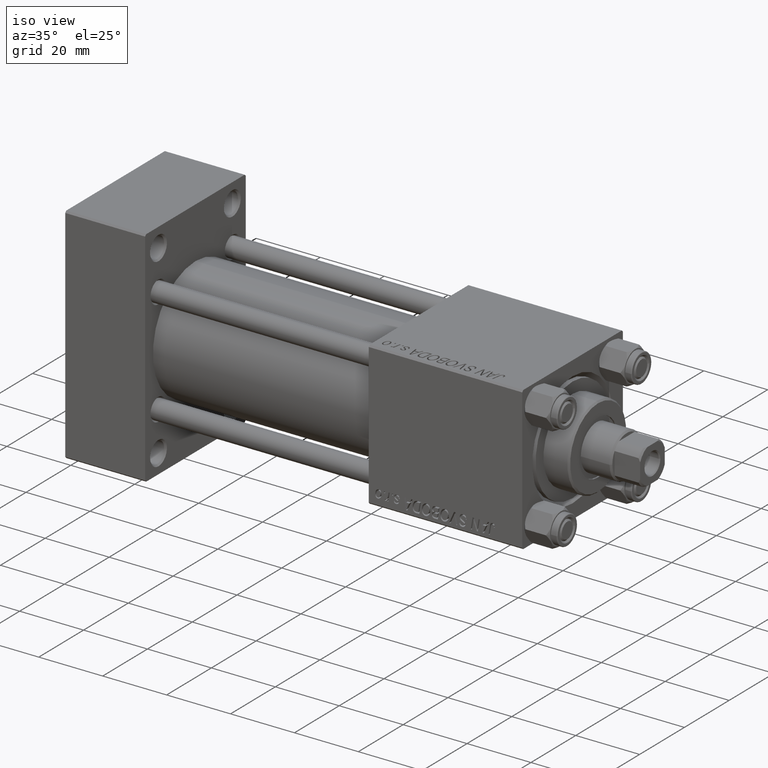
[diagram: clean part render]
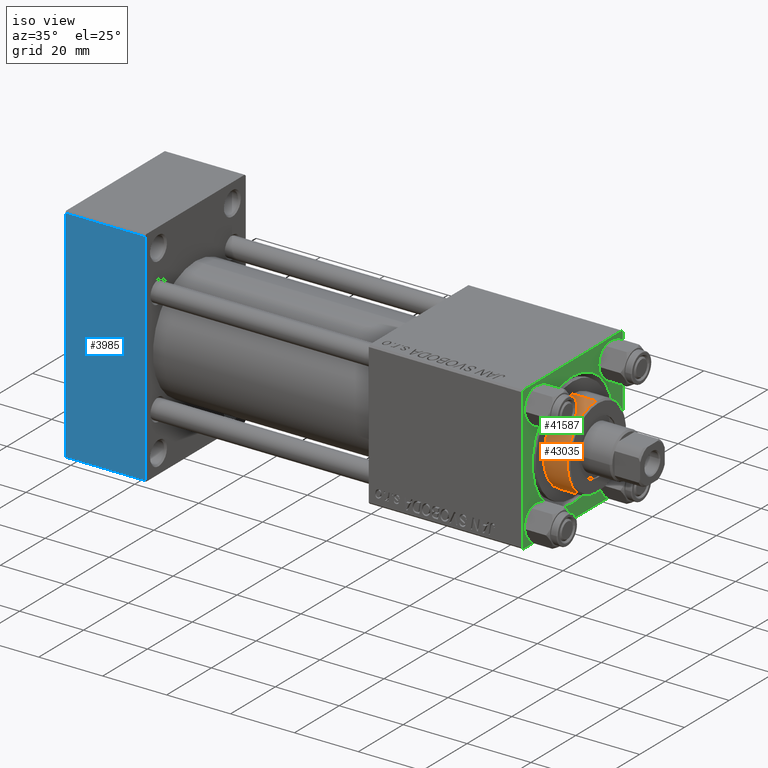
[diagram: same view with three faces highlighted in distinct colors, each labeled with its STEP entity id]
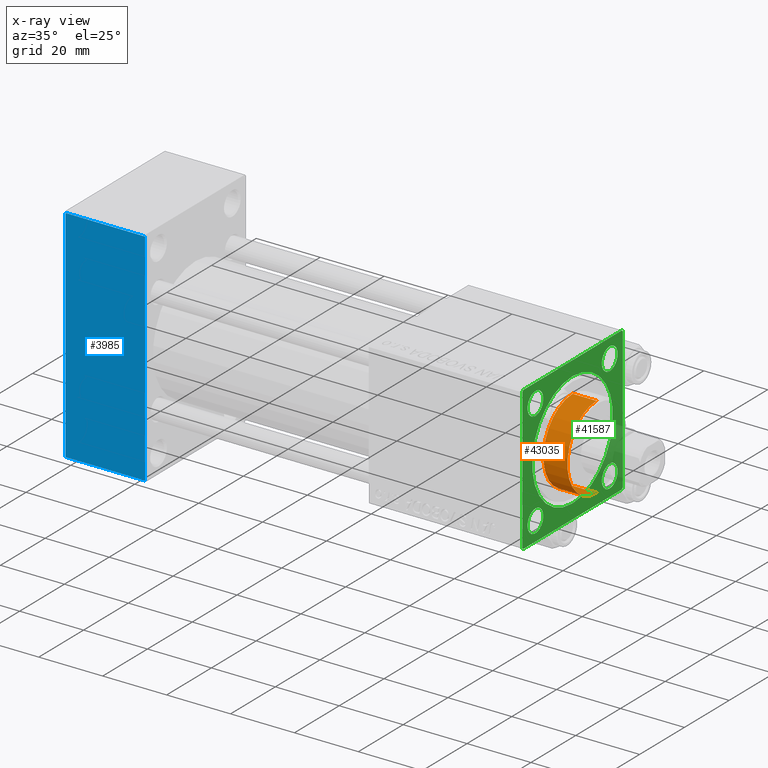
[diagram: x-ray of the same camera — body ghosted, the three highlighted faces saturated]
A machine part, iso view with three faces highlighted in distinct colors.
The next image is the same camera in x-ray (body ghosted, the three faces saturated) — at least one of them is partly hidden behind the body in this view.
Their STEP definitions:

[orange] entity #43035 — the highlighted cylindrical surface (partial cylindrical patch) has radius 13 mm, axis along (-1, -0, 0).
#1221 = VERTEX_POINT ( 'NONE', #47449 ) ;
#1530 = VECTOR ( 'NONE', #5713, 1000.000000000000000 ) ;
#2518 = DIRECTION ( 'NONE',  ( 0.000000000000000000, 0.000000000000000000, 1.000000000000000000 ) ) ;
#2690 = EDGE_CURVE ( 'NONE', #1221, #45446, #23543, .T. ) ;
#2933 = CIRCLE ( 'NONE', #31181, 13.00000000000000178 ) ;
#5415 = DIRECTION ( 'NONE',  ( -1.000000000000000000, 0.000000000000000000, 0.000000000000000000 ) ) ;
#5560 = DIRECTION ( 'NONE',  ( 1.000000000000000000, 0.000000000000000000, 0.000000000000000000 ) ) ;
#5713 = DIRECTION ( 'NONE',  ( -0.000000000000000000, -0.000000000000000000, -1.000000000000000000 ) ) ;
#7052 = VECTOR ( 'NONE', #31487, 1000.000000000000000 ) ;
#7485 = EDGE_CURVE ( 'NONE', #21145, #45446, #20373, .T. ) ;
#8235 = LINE ( 'NONE', #31237, #7052 ) ;
#9876 = CARTESIAN_POINT ( 'NONE',  ( -13.00000000000000178, 0.000000000000000000, 36.20000000000000995 ) ) ;
#10830 = CARTESIAN_POINT ( 'NONE',  ( 13.00000000000000178, 1.592040838891559293E-15, 28.69999999999999929 ) ) ;
#11867 = EDGE_LOOP ( 'NONE', ( #19000, #38710, #41828, #26089 ) ) ;
#13489 = CARTESIAN_POINT ( 'NONE',  ( 0.000000000000000000, 0.000000000000000000, 36.69999999999999574 ) ) ;
#14652 = AXIS2_PLACEMENT_3D ( 'NONE', #24778, #2518, #5560 ) ;
#16942 = CARTESIAN_POINT ( 'NONE',  ( 0.000000000000000000, 0.000000000000000000, 36.20000000000000995 ) ) ;
#19000 = ORIENTED_EDGE ( 'NONE', *, *, #7485, .F. ) ;
#20373 = LINE ( 'NONE', #35803, #1530 ) ;
#21145 = VERTEX_POINT ( 'NONE', #36284 ) ;
#21333 = DIRECTION ( 'NONE',  ( -0.000000000000000000, -0.000000000000000000, -1.000000000000000000 ) ) ;
#23543 = CIRCLE ( 'NONE', #14652, 13.00000000000000178 ) ;
#24641 = VERTEX_POINT ( 'NONE', #9876 ) ;
#24778 = CARTESIAN_POINT ( 'NONE',  ( 0.000000000000000000, 0.000000000000000000, 28.69999999999999929 ) ) ;
#26089 = ORIENTED_EDGE ( 'NONE', *, *, #2690, .T. ) ;
#31181 = AXIS2_PLACEMENT_3D ( 'NONE', #16942, #32105, #40180 ) ;
#31237 = CARTESIAN_POINT ( 'NONE',  ( -13.00000000000000178, 0.000000000000000000, 36.69999999999999574 ) ) ;
#31487 = DIRECTION ( 'NONE',  ( -0.000000000000000000, -0.000000000000000000, -1.000000000000000000 ) ) ;
#32105 = DIRECTION ( 'NONE',  ( 0.000000000000000000, 0.000000000000000000, -1.000000000000000000 ) ) ;
#32315 = EDGE_CURVE ( 'NONE', #24641, #1221, #8235, .T. ) ;
#32963 = FACE_OUTER_BOUND ( 'NONE', #11867, .T. ) ;
#35803 = CARTESIAN_POINT ( 'NONE',  ( 13.00000000000000178, 1.592040838891559293E-15, 36.69999999999999574 ) ) ;
#36284 = CARTESIAN_POINT ( 'NONE',  ( 13.00000000000000178, 1.592040838891559293E-15, 36.20000000000000995 ) ) ;
#38710 = ORIENTED_EDGE ( 'NONE', *, *, #45944, .T. ) ;
#40180 = DIRECTION ( 'NONE',  ( 1.000000000000000000, 0.000000000000000000, 0.000000000000000000 ) ) ;
#40536 = CYLINDRICAL_SURFACE ( 'NONE', #49657, 13.00000000000000178 ) ;
#41828 = ORIENTED_EDGE ( 'NONE', *, *, #32315, .T. ) ;
#43035 = ADVANCED_FACE ( 'NONE', ( #32963 ), #40536, .T. ) ;
#45446 = VERTEX_POINT ( 'NONE', #10830 ) ;
#45944 = EDGE_CURVE ( 'NONE', #21145, #24641, #2933, .T. ) ;
#47449 = CARTESIAN_POINT ( 'NONE',  ( -13.00000000000000178, 0.000000000000000000, 28.69999999999999929 ) ) ;
#49657 = AXIS2_PLACEMENT_3D ( 'NONE', #13489, #21333, #5415 ) ;

[blue] entity #3985 — the highlighted planar face has unit normal (0, 1, 0).
#666 = VERTEX_POINT ( 'NONE', #11773 ) ;
#896 = DIRECTION ( 'NONE',  ( -0.000000000000000000, 1.000000000000000000, 0.000000000000000000 ) ) ;
#1865 = CARTESIAN_POINT ( 'NONE',  ( 0.000000000000000000, -22.49999999999999645, 34.50000000000000000 ) ) ;
#3097 = CARTESIAN_POINT ( 'NONE',  ( 0.000000000000000000, -22.49999999999999645, 35.00000000000000000 ) ) ;
#3985 = ADVANCED_FACE ( 'NONE', ( #31242 ), #20104, .F. ) ;
#4371 = CARTESIAN_POINT ( 'NONE',  ( 25.00000000000000000, -22.49999999999999645, -34.50000000000000000 ) ) ;
#4983 = VERTEX_POINT ( 'NONE', #33688 ) ;
#9058 = AXIS2_PLACEMENT_3D ( 'NONE', #35528, #896, #42347 ) ;
#9748 = EDGE_CURVE ( 'NONE', #4983, #666, #46041, .T. ) ;
#10639 = ORIENTED_EDGE ( 'NONE', *, *, #38284, .T. ) ;
#11773 = CARTESIAN_POINT ( 'NONE',  ( 25.00000000000000000, -22.49999999999999645, -34.50000000000000000 ) ) ;
#13972 = EDGE_LOOP ( 'NONE', ( #10639, #31909, #31161, #14676 ) ) ;
#14460 = CARTESIAN_POINT ( 'NONE',  ( 25.00000000000000000, -22.49999999999999645, 34.50000000000000000 ) ) ;
#14676 = ORIENTED_EDGE ( 'NONE', *, *, #31897, .T. ) ;
#14951 = DIRECTION ( 'NONE',  ( 0.000000000000000000, 0.000000000000000000, -1.000000000000000000 ) ) ;
#16246 = DIRECTION ( 'NONE',  ( 1.000000000000000000, 0.000000000000000000, 0.000000000000000000 ) ) ;
#20104 = PLANE ( 'NONE',  #9058 ) ;
#21788 = VECTOR ( 'NONE', #16246, 1000.000000000000000 ) ;
#24083 = VERTEX_POINT ( 'NONE', #28025 ) ;
#25721 = VERTEX_POINT ( 'NONE', #1865 ) ;
#26928 = LINE ( 'NONE', #27676, #33426 ) ;
#27676 = CARTESIAN_POINT ( 'NONE',  ( 25.00000000000000000, -22.49999999999999645, 35.00000000000000000 ) ) ;
#28025 = CARTESIAN_POINT ( 'NONE',  ( 25.00000000000000000, -22.49999999999999645, 34.50000000000000000 ) ) ;
#29457 = VECTOR ( 'NONE', #14951, 1000.000000000000000 ) ;
#31161 = ORIENTED_EDGE ( 'NONE', *, *, #35907, .F. ) ;
#31242 = FACE_OUTER_BOUND ( 'NONE', #13972, .T. ) ;
#31897 = EDGE_CURVE ( 'NONE', #24083, #25721, #49064, .T. ) ;
#31909 = ORIENTED_EDGE ( 'NONE', *, *, #9748, .T. ) ;
#32882 = VECTOR ( 'NONE', #40755, 1000.000000000000000 ) ;
#33426 = VECTOR ( 'NONE', #35507, 1000.000000000000000 ) ;
#33688 = CARTESIAN_POINT ( 'NONE',  ( 0.000000000000000000, -22.49999999999999645, -34.50000000000000000 ) ) ;
#35507 = DIRECTION ( 'NONE',  ( 0.000000000000000000, 0.000000000000000000, -1.000000000000000000 ) ) ;
#35528 = CARTESIAN_POINT ( 'NONE',  ( 25.00000000000000000, -22.49999999999999645, 35.00000000000000000 ) ) ;
#35907 = EDGE_CURVE ( 'NONE', #24083, #666, #26928, .T. ) ;
#38284 = EDGE_CURVE ( 'NONE', #25721, #4983, #38457, .T. ) ;
#38457 = LINE ( 'NONE', #3097, #29457 ) ;
#40755 = DIRECTION ( 'NONE',  ( -1.000000000000000000, 0.000000000000000000, 0.000000000000000000 ) ) ;
#42347 = DIRECTION ( 'NONE',  ( 0.000000000000000000, -0.000000000000000000, 1.000000000000000000 ) ) ;
#46041 = LINE ( 'NONE', #4371, #21788 ) ;
#49064 = LINE ( 'NONE', #14460, #32882 ) ;

[green] entity #41587 — the highlighted planar face has unit normal (-1, 0, 0).
#47 = VERTEX_POINT ( 'NONE', #14328 ) ;
#416 = DIRECTION ( 'NONE',  ( -0.000000000000000000, 0.000000000000000000, 1.000000000000000000 ) ) ;
#752 = ORIENTED_EDGE ( 'NONE', *, *, #10450, .T. ) ;
#1646 = EDGE_CURVE ( 'NONE', #12073, #47273, #24420, .T. ) ;
#1754 = DIRECTION ( 'NONE',  ( 0.000000000000000000, 0.000000000000000000, 1.000000000000000000 ) ) ;
#1976 = ORIENTED_EDGE ( 'NONE', *, *, #37274, .F. ) ;
#2399 = VERTEX_POINT ( 'NONE', #8424 ) ;
#2968 = AXIS2_PLACEMENT_3D ( 'NONE', #21456, #44678, #13857 ) ;
#3361 = VERTEX_POINT ( 'NONE', #36274 ) ;
#3461 = ORIENTED_EDGE ( 'NONE', *, *, #12328, .T. ) ;
#3666 = DIRECTION ( 'NONE',  ( 0.000000000000000000, -1.000000000000000000, -7.709882115452476934E-17 ) ) ;
#3986 = CARTESIAN_POINT ( 'NONE',  ( 143.0000000000000284, 0.000000000000000000, 0.000000000000000000 ) ) ;
#4012 = CIRCLE ( 'NONE', #35481, 3.499999999999989342 ) ;
#4461 = DIRECTION ( 'NONE',  ( 0.000000000000000000, 0.7071067811865328068, -0.7071067811865622277 ) ) ;
#5083 = ORIENTED_EDGE ( 'NONE', *, *, #11018, .T. ) ;
#5205 = CARTESIAN_POINT ( 'NONE',  ( 143.0000000000000284, -22.00000000000001066, -22.50000000000000000 ) ) ;
#5668 = EDGE_CURVE ( 'NONE', #45420, #12073, #45520, .T. ) ;
#5809 = EDGE_LOOP ( 'NONE', ( #41177, #5083 ) ) ;
#5887 = DIRECTION ( 'NONE',  ( 0.000000000000000000, 0.000000000000000000, -1.000000000000000000 ) ) ;
#5901 = CARTESIAN_POINT ( 'NONE',  ( 143.0000000000000284, 2.204364238465237794E-15, 18.00000000000001421 ) ) ;
#6643 = DIRECTION ( 'NONE',  ( -1.000000000000000000, 0.000000000000000000, -0.000000000000000000 ) ) ;
#6940 = CARTESIAN_POINT ( 'NONE',  ( 143.0000000000000284, -22.49999999999999645, -21.99999999999997868 ) ) ;
#8424 = CARTESIAN_POINT ( 'NONE',  ( 143.0000000000000284, 16.59999999999999787, -20.09999999999995168 ) ) ;
#8516 = CARTESIAN_POINT ( 'NONE',  ( 143.0000000000000284, 0.000000000000000000, 0.000000000000000000 ) ) ;
#8599 = AXIS2_PLACEMENT_3D ( 'NONE', #12940, #28373, #46799 ) ;
#8673 = DIRECTION ( 'NONE',  ( 0.000000000000000000, 0.000000000000000000, 1.000000000000000000 ) ) ;
#8973 = ORIENTED_EDGE ( 'NONE', *, *, #46076, .F. ) ;
#9138 = AXIS2_PLACEMENT_3D ( 'NONE', #14225, #6643, #11910 ) ;
#9140 = CARTESIAN_POINT ( 'NONE',  ( 143.0000000000000284, -16.59999999999999076, -16.60000000000000853 ) ) ;
#9668 = CARTESIAN_POINT ( 'NONE',  ( 143.0000000000000284, 16.59999999999999787, -16.60000000000000497 ) ) ;
#9702 = CARTESIAN_POINT ( 'NONE',  ( 143.0000000000000284, 0.000000000000000000, -18.00000000000001421 ) ) ;
#9790 = VECTOR ( 'NONE', #4461, 1000.000000000000000 ) ;
#10450 = EDGE_CURVE ( 'NONE', #44655, #15614, #4012, .T. ) ;
#10592 = ORIENTED_EDGE ( 'NONE', *, *, #46484, .T. ) ;
#10738 = CARTESIAN_POINT ( 'NONE',  ( 143.0000000000000284, 21.99999999999998934, 22.50000000000000355 ) ) ;
#10801 = EDGE_LOOP ( 'NONE', ( #47726, #33864 ) ) ;
#11018 = EDGE_CURVE ( 'NONE', #47, #2399, #49245, .T. ) ;
#11421 = CARTESIAN_POINT ( 'NONE',  ( 143.0000000000000284, -16.59999999999999076, -20.09999999999999787 ) ) ;
#11752 = VECTOR ( 'NONE', #18815, 1000.000000000000114 ) ;
#11857 = VECTOR ( 'NONE', #39048, 1000.000000000000000 ) ;
#11910 = DIRECTION ( 'NONE',  ( 0.000000000000000000, 0.000000000000000000, 1.000000000000000000 ) ) ;
#12073 = VERTEX_POINT ( 'NONE', #6940 ) ;
#12082 = DIRECTION ( 'NONE',  ( -0.000000000000000000, -0.7071067811865474617, -0.7071067811865474617 ) ) ;
#12123 = ORIENTED_EDGE ( 'NONE', *, *, #12264, .T. ) ;
#12264 = EDGE_CURVE ( 'NONE', #23930, #45420, #27272, .T. ) ;
#12328 = EDGE_CURVE ( 'NONE', #45645, #47914, #27018, .T. ) ;
#12940 = CARTESIAN_POINT ( 'NONE',  ( 143.0000000000000284, 16.59999999999999787, -16.60000000000000497 ) ) ;
#13834 = EDGE_LOOP ( 'NONE', ( #22119, #752 ) ) ;
#13857 = DIRECTION ( 'NONE',  ( 0.000000000000000000, 0.000000000000000000, 1.000000000000000000 ) ) ;
#13961 = CIRCLE ( 'NONE', #9138, 3.499999999999989342 ) ;
#14225 = CARTESIAN_POINT ( 'NONE',  ( 143.0000000000000284, -16.59999999999999076, 16.60000000000000853 ) ) ;
#14328 = CARTESIAN_POINT ( 'NONE',  ( 143.0000000000000284, 16.59999999999999787, -13.10000000000005649 ) ) ;
#14388 = EDGE_CURVE ( 'NONE', #14700, #25641, #38078, .T. ) ;
#14700 = VERTEX_POINT ( 'NONE', #9702 ) ;
#15360 = DIRECTION ( 'NONE',  ( 0.000000000000000000, 0.000000000000000000, 1.000000000000000000 ) ) ;
#15364 = DIRECTION ( 'NONE',  ( 0.000000000000000000, 0.000000000000000000, 1.000000000000000000 ) ) ;
#15614 = VERTEX_POINT ( 'NONE', #11421 ) ;
#15685 = LINE ( 'NONE', #38932, #39118 ) ;
#16288 = AXIS2_PLACEMENT_3D ( 'NONE', #8516, #32009, #16845 ) ;
#16728 = DIRECTION ( 'NONE',  ( -1.000000000000000000, 0.000000000000000000, -0.000000000000000000 ) ) ;
#16845 = DIRECTION ( 'NONE',  ( 0.000000000000000000, 0.000000000000000000, 1.000000000000000000 ) ) ;
#18063 = ORIENTED_EDGE ( 'NONE', *, *, #28499, .T. ) ;
#18088 = AXIS2_PLACEMENT_3D ( 'NONE', #38613, #27259, #15364 ) ;
#18177 = CARTESIAN_POINT ( 'NONE',  ( 143.0000000000000284, -16.59999999999999076, -16.60000000000000853 ) ) ;
#18815 = DIRECTION ( 'NONE',  ( 0.000000000000000000, -0.7071067811865474617, 0.7071067811865474617 ) ) ;
#18833 = LINE ( 'NONE', #25695, #46515 ) ;
#19130 = FACE_BOUND ( 'NONE', #5809, .T. ) ;
#19376 = PLANE ( 'NONE',  #44076 ) ;
#19607 = EDGE_CURVE ( 'NONE', #25641, #14700, #36595, .T. ) ;
#20092 = CARTESIAN_POINT ( 'NONE',  ( 143.0000000000000284, 21.99999999999998934, -22.49999999999999645 ) ) ;
#20146 = VECTOR ( 'NONE', #5887, 1000.000000000000000 ) ;
#20772 = VERTEX_POINT ( 'NONE', #41358 ) ;
#21270 = AXIS2_PLACEMENT_3D ( 'NONE', #3986, #35070, #15360 ) ;
#21456 = CARTESIAN_POINT ( 'NONE',  ( 143.0000000000000284, 16.59999999999999787, 16.60000000000000497 ) ) ;
#22119 = ORIENTED_EDGE ( 'NONE', *, *, #40400, .T. ) ;
#22424 = EDGE_CURVE ( 'NONE', #3361, #20772, #13961, .T. ) ;
#22484 = CARTESIAN_POINT ( 'NONE',  ( 143.0000000000000284, 22.50000000000000355, -21.99999999999998224 ) ) ;
#23186 = FACE_OUTER_BOUND ( 'NONE', #28951, .T. ) ;
#23480 = CARTESIAN_POINT ( 'NONE',  ( 143.0000000000000284, -22.49999999999999645, 21.99999999999997868 ) ) ;
#23930 = VERTEX_POINT ( 'NONE', #38819 ) ;
#24420 = LINE ( 'NONE', #5205, #9790 ) ;
#24560 = DIRECTION ( 'NONE',  ( 0.000000000000000000, 0.000000000000000000, 1.000000000000000000 ) ) ;
#25070 = ORIENTED_EDGE ( 'NONE', *, *, #36653, .T. ) ;
#25096 = VECTOR ( 'NONE', #12082, 1000.000000000000114 ) ;
#25641 = VERTEX_POINT ( 'NONE', #5901 ) ;
#25695 = CARTESIAN_POINT ( 'NONE',  ( 143.0000000000000284, 22.50000000000000355, -22.49999999999999645 ) ) ;
#25861 = AXIS2_PLACEMENT_3D ( 'NONE', #9668, #28883, #8673 ) ;
#25995 = EDGE_LOOP ( 'NONE', ( #43428, #38171 ) ) ;
#26711 = DIRECTION ( 'NONE',  ( -1.000000000000000000, 0.000000000000000000, -0.000000000000000000 ) ) ;
#26957 = CIRCLE ( 'NONE', #18088, 3.499999999999989342 ) ;
#27018 = LINE ( 'NONE', #22484, #39585 ) ;
#27231 = FACE_BOUND ( 'NONE', #10801, .T. ) ;
#27259 = DIRECTION ( 'NONE',  ( -1.000000000000000000, 0.000000000000000000, -0.000000000000000000 ) ) ;
#27272 = LINE ( 'NONE', #23480, #25096 ) ;
#27712 = DIRECTION ( 'NONE',  ( 0.000000000000000000, 0.000000000000000000, 1.000000000000000000 ) ) ;
#27970 = CARTESIAN_POINT ( 'NONE',  ( 143.0000000000000284, 0.000000000000000000, 0.000000000000000000 ) ) ;
#28107 = CARTESIAN_POINT ( 'NONE',  ( 143.0000000000000284, 21.99999999999998934, 22.50000000000000355 ) ) ;
#28373 = DIRECTION ( 'NONE',  ( -1.000000000000000000, 0.000000000000000000, -0.000000000000000000 ) ) ;
#28499 = EDGE_CURVE ( 'NONE', #49488, #44129, #48886, .T. ) ;
#28883 = DIRECTION ( 'NONE',  ( -1.000000000000000000, 0.000000000000000000, -0.000000000000000000 ) ) ;
#28951 = EDGE_LOOP ( 'NONE', ( #42744, #33414, #8973, #3461, #1976, #18063, #39238, #12123 ) ) ;
#29308 = DIRECTION ( 'NONE',  ( -1.000000000000000000, 0.000000000000000000, -0.000000000000000000 ) ) ;
#29345 = CARTESIAN_POINT ( 'NONE',  ( 143.0000000000000284, 22.50000000000000355, 21.99999999999998934 ) ) ;
#30153 = EDGE_CURVE ( 'NONE', #2399, #47, #30388, .T. ) ;
#30388 = CIRCLE ( 'NONE', #8599, 3.499999999999947597 ) ;
#31513 = DIRECTION ( 'NONE',  ( -1.000000000000000000, 0.000000000000000000, -0.000000000000000000 ) ) ;
#32009 = DIRECTION ( 'NONE',  ( -1.000000000000000000, 0.000000000000000000, -0.000000000000000000 ) ) ;
#33414 = ORIENTED_EDGE ( 'NONE', *, *, #1646, .T. ) ;
#33589 = CARTESIAN_POINT ( 'NONE',  ( 143.0000000000000284, -16.59999999999999076, -13.10000000000001741 ) ) ;
#33864 = ORIENTED_EDGE ( 'NONE', *, *, #19607, .T. ) ;
#33974 = EDGE_LOOP ( 'NONE', ( #10592, #25070 ) ) ;
#35070 = DIRECTION ( 'NONE',  ( -1.000000000000000000, 0.000000000000000000, -0.000000000000000000 ) ) ;
#35481 = AXIS2_PLACEMENT_3D ( 'NONE', #18177, #29308, #1754 ) ;
#36274 = CARTESIAN_POINT ( 'NONE',  ( 143.0000000000000284, -16.59999999999999076, 13.10000000000001741 ) ) ;
#36595 = CIRCLE ( 'NONE', #21270, 18.00000000000001421 ) ;
#36653 = EDGE_CURVE ( 'NONE', #40410, #39544, #26957, .T. ) ;
#36812 = AXIS2_PLACEMENT_3D ( 'NONE', #9140, #16728, #24560 ) ;
#36928 = CARTESIAN_POINT ( 'NONE',  ( 143.0000000000000284, 16.59999999999999787, 20.09999999999999432 ) ) ;
#37274 = EDGE_CURVE ( 'NONE', #49488, #47914, #15685, .T. ) ;
#38078 = CIRCLE ( 'NONE', #16288, 18.00000000000001421 ) ;
#38138 = DIRECTION ( 'NONE',  ( -0.000000000000000000, 0.7071067811865474617, 0.7071067811865474617 ) ) ;
#38171 = ORIENTED_EDGE ( 'NONE', *, *, #40902, .T. ) ;
#38371 = CARTESIAN_POINT ( 'NONE',  ( 143.0000000000000284, -22.49999999999999645, 21.99999999999997868 ) ) ;
#38429 = AXIS2_PLACEMENT_3D ( 'NONE', #42356, #26711, #27712 ) ;
#38613 = CARTESIAN_POINT ( 'NONE',  ( 143.0000000000000284, 16.59999999999999787, 16.60000000000000497 ) ) ;
#38799 = CARTESIAN_POINT ( 'NONE',  ( 143.0000000000000284, 22.50000000000000355, -21.99999999999996803 ) ) ;
#38819 = CARTESIAN_POINT ( 'NONE',  ( 143.0000000000000284, -21.99999999999996803, 22.49999999999999289 ) ) ;
#38932 = CARTESIAN_POINT ( 'NONE',  ( 143.0000000000000284, 22.50000000000000355, 22.50000000000000355 ) ) ;
#39048 = DIRECTION ( 'NONE',  ( 0.000000000000000000, -1.000000000000000000, -2.312964634635742957E-16 ) ) ;
#39118 = VECTOR ( 'NONE', #49785, 1000.000000000000000 ) ;
#39238 = ORIENTED_EDGE ( 'NONE', *, *, #47093, .T. ) ;
#39337 = FACE_BOUND ( 'NONE', #33974, .T. ) ;
#39544 = VERTEX_POINT ( 'NONE', #44728 ) ;
#39585 = VECTOR ( 'NONE', #38138, 1000.000000000000114 ) ;
#40400 = EDGE_CURVE ( 'NONE', #15614, #44655, #49695, .T. ) ;
#40410 = VERTEX_POINT ( 'NONE', #36928 ) ;
#40843 = CIRCLE ( 'NONE', #38429, 3.499999999999989342 ) ;
#40872 = CIRCLE ( 'NONE', #2968, 3.499999999999989342 ) ;
#40902 = EDGE_CURVE ( 'NONE', #20772, #3361, #40843, .T. ) ;
#41177 = ORIENTED_EDGE ( 'NONE', *, *, #30153, .T. ) ;
#41358 = CARTESIAN_POINT ( 'NONE',  ( 143.0000000000000284, -16.59999999999999076, 20.09999999999999787 ) ) ;
#41587 = ADVANCED_FACE ( 'NONE', ( #42616, #19130, #39337, #43112, #27231, #23186 ), #19376, .F. ) ;
#41783 = CARTESIAN_POINT ( 'NONE',  ( 143.0000000000000284, -21.99999999999999645, -22.50000000000000000 ) ) ;
#42356 = CARTESIAN_POINT ( 'NONE',  ( 143.0000000000000284, -16.59999999999999076, 16.60000000000000853 ) ) ;
#42616 = FACE_BOUND ( 'NONE', #13834, .T. ) ;
#42744 = ORIENTED_EDGE ( 'NONE', *, *, #5668, .T. ) ;
#42825 = LINE ( 'NONE', #43073, #11857 ) ;
#43073 = CARTESIAN_POINT ( 'NONE',  ( 143.0000000000000284, 22.50000000000000355, 22.50000000000000355 ) ) ;
#43112 = FACE_BOUND ( 'NONE', #25995, .T. ) ;
#43428 = ORIENTED_EDGE ( 'NONE', *, *, #22424, .T. ) ;
#44076 = AXIS2_PLACEMENT_3D ( 'NONE', #27970, #31513, #416 ) ;
#44129 = VERTEX_POINT ( 'NONE', #28107 ) ;
#44655 = VERTEX_POINT ( 'NONE', #33589 ) ;
#44678 = DIRECTION ( 'NONE',  ( -1.000000000000000000, 0.000000000000000000, -0.000000000000000000 ) ) ;
#44728 = CARTESIAN_POINT ( 'NONE',  ( 143.0000000000000284, 16.59999999999999787, 13.10000000000001386 ) ) ;
#45420 = VERTEX_POINT ( 'NONE', #38371 ) ;
#45520 = LINE ( 'NONE', #48568, #20146 ) ;
#45645 = VERTEX_POINT ( 'NONE', #20092 ) ;
#46076 = EDGE_CURVE ( 'NONE', #45645, #47273, #18833, .T. ) ;
#46484 = EDGE_CURVE ( 'NONE', #39544, #40410, #40872, .T. ) ;
#46515 = VECTOR ( 'NONE', #3666, 1000.000000000000000 ) ;
#46799 = DIRECTION ( 'NONE',  ( 0.000000000000000000, 0.000000000000000000, 1.000000000000000000 ) ) ;
#47093 = EDGE_CURVE ( 'NONE', #44129, #23930, #42825, .T. ) ;
#47273 = VERTEX_POINT ( 'NONE', #41783 ) ;
#47726 = ORIENTED_EDGE ( 'NONE', *, *, #14388, .T. ) ;
#47914 = VERTEX_POINT ( 'NONE', #38799 ) ;
#48568 = CARTESIAN_POINT ( 'NONE',  ( 143.0000000000000284, -22.49999999999999645, 22.49999999999999289 ) ) ;
#48886 = LINE ( 'NONE', #10738, #11752 ) ;
#49245 = CIRCLE ( 'NONE', #25861, 3.499999999999947597 ) ;
#49488 = VERTEX_POINT ( 'NONE', #29345 ) ;
#49695 = CIRCLE ( 'NONE', #36812, 3.499999999999989342 ) ;
#49785 = DIRECTION ( 'NONE',  ( 0.000000000000000000, 0.000000000000000000, -1.000000000000000000 ) ) ;